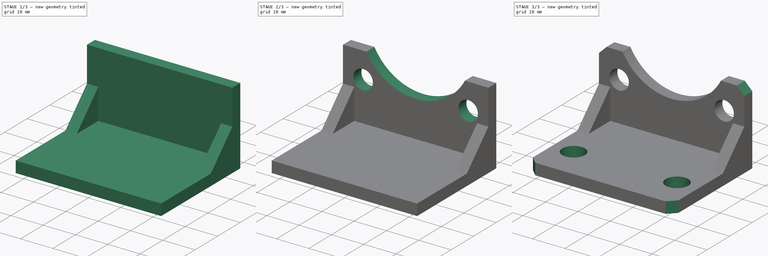
[diagram: build sequence overview — one tinted view per stage of 3, left to right]
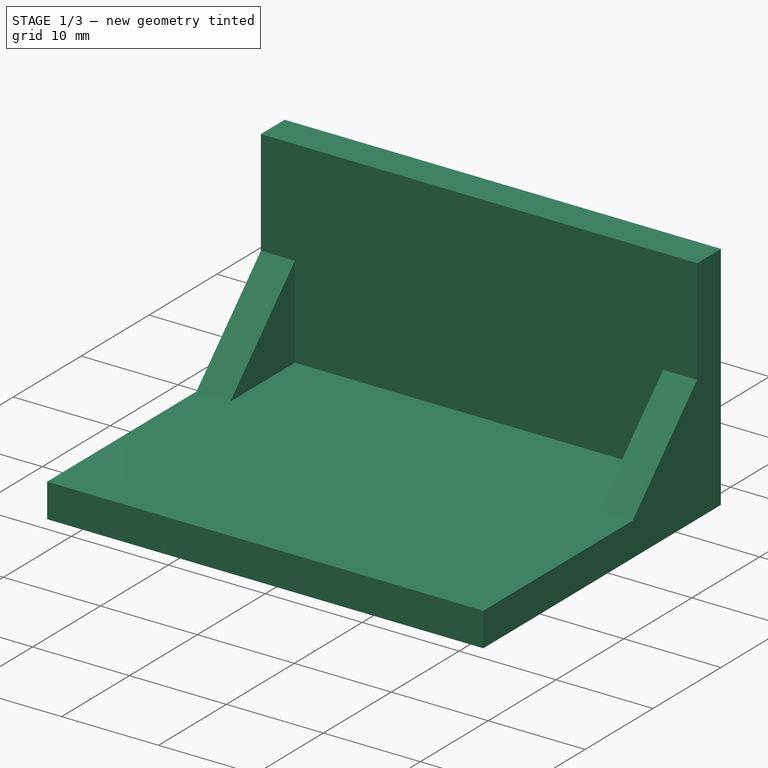
[diagram: stage 1 of 3 — iso view after this stage's code; geometry added in this stage tinted green]
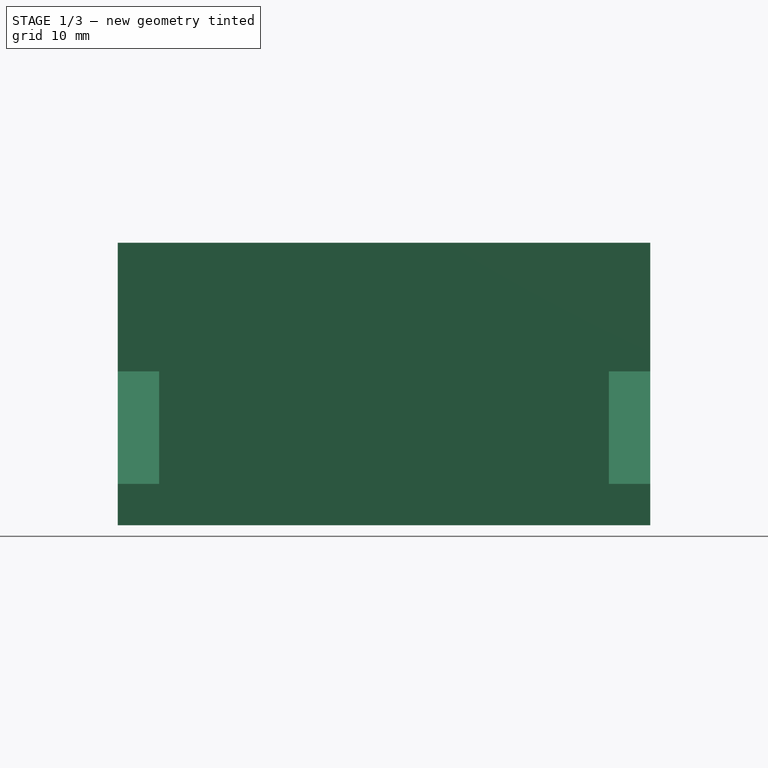
[diagram: stage 1 of 3 — front view after this stage's code; geometry added in this stage tinted green]
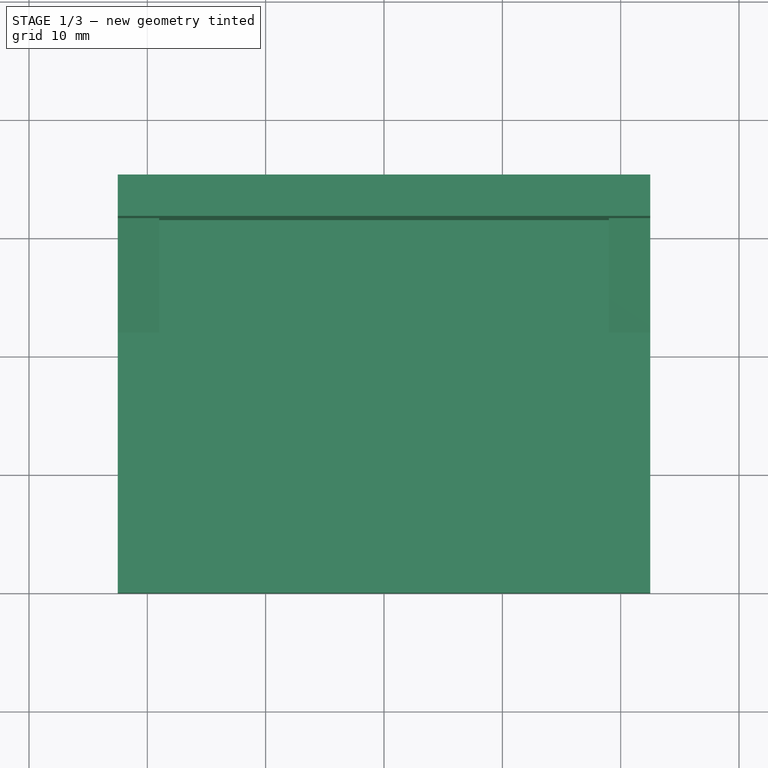
[diagram: stage 1 of 3 — top view after this stage's code; geometry added in this stage tinted green]
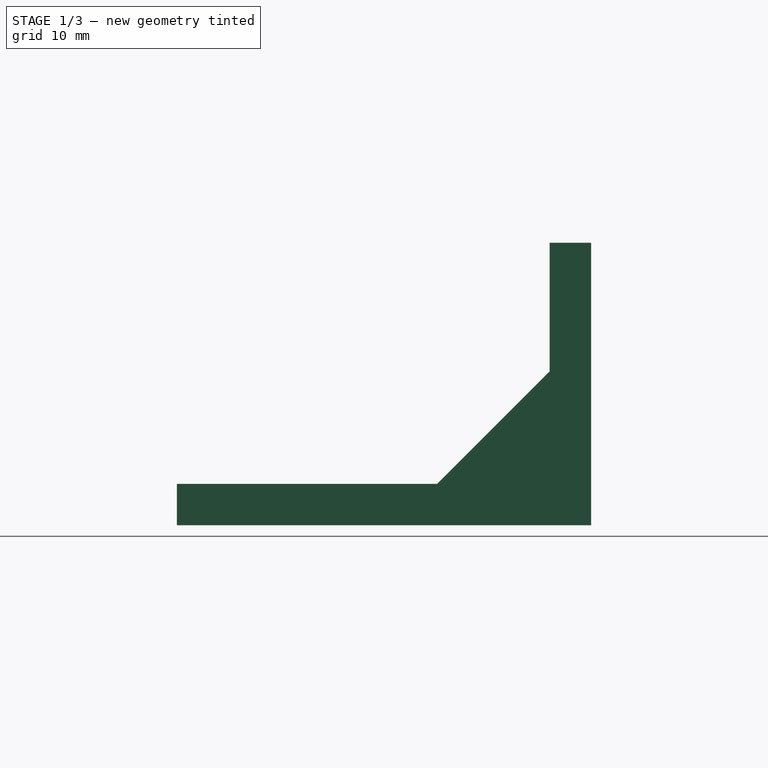
[diagram: stage 1 of 3 — right view after this stage's code; geometry added in this stage tinted green]
FCSTD DOCUMENT  (FreeCAD 0.17R13509 (Git))
Label: Foot
License: CreativeCommons Attribution-ShareAlike
LicenseURL: http://creativecommons.org/licenses/by-sa/4.0/
objects: Sketcher::SketchObject×4, PartDesign::Pocket×3, Spreadsheet::Sheet×1, PartDesign::Pad×1, PartDesign::Chamfer×1, PartDesign::Body×1, App::Part×1
note: 14 computed .brp shape members not serialized (recipe doc carries the construction recipe); baked Part::Feature solids carry a one-line shape summary decoded from their .brp

FEATURE [Spreadsheet::Sheet] Spreadsheet  label="Dimensions"
  cells = A3=Diametro; B3=32; D3=32; E3=40; F3=50; G3=63; H3=80; I3=100; J3=125; K3=160; L3=200; A4=Medida1; B4(pieb1)=3.5; D4=3.5; E4=3.5; F4=3.5; G4=4.5; H4=5; I4=5; J4=8; K4=9; L4=12; A5=Medida2; B5(pieb2)=32.5; D5=32.5; E5=38; F5=46.5; G5=56.5; H5=72; I5=89; J5=110; K5=140; L5=175; A6=Medida3; B6(pieb3)=32; D6=32; E6=36; F6=45; G6=50; H6=63; I6=75; J6=90; K6=115; L6=135; A7=Medida4; B7(pieb4)=45; D7=45; E7=52; F7=65; G7=75; H7=95; I7=115; J7=140; K7=180; L7=220; A8=Medida5; B8(pieb5)=7; D8=7; E8=9; F8=9; G8=9; H8=12; I8=14; J8=16; K8=18; L8=22; A9=Medida6; B9(pieb6)=32; D9=32; E9=36; F9=45; G9=50; H9=63; I9=71; J9=90; K9=115; L9=135; A10=Medida7; B10(pieb7)=24; D10=24; E10=28; F10=32; G10=32; H10=41; I10=41; J10=45; K10=60; L10=70; A11=Medida 8; B11(pieb8)=11; D11=11; E11=12; F11=13; G11=13; H11=14; I11=16; J11=25; K11=15; L11=30; A13=B; B13(bb)=30; D13=30; E13=35; F13=40; G13=45; H13=45; I13=55; J13=60; K13=65; L13=75; A14=RT; B14(rt)=6; D14=6; E14=6; F14=8; G14=8; H14=10; I14=10; J14=12; K14=16; L14=16
FEATURE [Sketcher::SketchObject] Sketch
  MapMode = 5
  Placement = pos=(0,0,0) rot=(0.57735,0.57735,0.57735;2.0944rad)
  Support = -> [YZ_Plane001]
  expr: Constraints[32] = Dimensions.pieb2 / 4
  expr: Constraints[14] = Dimensions.pieb1
  expr: Constraints[16] = Dimensions.pieb7 + Dimensions.pieb8
  expr: Constraints[17] = Dimensions.pieb8 * 2
  expr: Constraints[29] = Dimensions.pieb2 / 2
  expr: Constraints[31] = Dimensions.pieb8
  expr: Constraints[24] = Dimensions.pieb6
  sketch-geometry (11):
    g0: LineSegment StartX=0 StartY=0 StartZ=0 EndX=0 EndY=3.5 EndZ=0
    g1: LineSegment StartX=0 StartY=3.5 StartZ=0 EndX=22 EndY=3.5 EndZ=0
    g2: LineSegment StartX=22 StartY=3.5 StartZ=0 EndX=31.5 EndY=13 EndZ=0
    g3: LineSegment StartX=31.5 StartY=13 StartZ=0 EndX=31.5 EndY=23.875 EndZ=0
    g4: LineSegment StartX=31.5 StartY=23.875 StartZ=0 EndX=35 EndY=23.875 EndZ=0
    g5: LineSegment StartX=35 StartY=23.875 StartZ=0 EndX=35 EndY=0 EndZ=0
    g6: LineSegment StartX=35 StartY=0 StartZ=0 EndX=0 EndY=0 EndZ=0
    g7: LineSegment [constr] StartX=22 StartY=3.5 StartZ=0 EndX=35 EndY=3.5 EndZ=0
    g8: LineSegment [constr] StartX=46 StartY=0 StartZ=0 EndX=46 EndY=32 EndZ=0
    g9: LineSegment [constr] StartX=46 StartY=32 StartZ=0 EndX=29.75 EndY=32 EndZ=0
    g10: LineSegment [constr] StartX=29.75 StartY=32 StartZ=0 EndX=29.75 EndY=15.75 EndZ=0
  constraints (33):
    c: Coincident(g0,g-1)
    c: PointOnObject(g0,g-2)
    c: Coincident(g0,g1)
    c: Horizontal(g1)
    c: Coincident(g1,g2)
    c: Coincident(g2,g3)
    c: Vertical(g3)
    c: Coincident(g3,g4)
    c: Horizontal(g4)
    c: Coincident(g4,g5)
    c: PointOnObject(g5,g-1)
    c: Vertical(g5)
    c: Coincident(g5,g6)
    c: Equal(g4,g0)
    c: DistanceY(g0,g0) = 3.5
    c: Coincident(g-1,g6)
    c: DistanceX(g6,g6) = 35
    c: DistanceX(g1,g1) = 22
    c: Coincident(g1,g7)
    c: PointOnObject(g7,g5)
    c: Horizontal(g7)
    c: Angle(g7,g2) = 0.785398
    c: PointOnObject(g8,g-1)
    c: Vertical(g8)
    c: DistanceY(g8,g8) = 32
    c: Coincident(g8,g9)
    c: Horizontal(g9)
    c: Coincident(g9,g10)
    c: Vertical(g10)
    c: DistanceY(g10,g10) = 16.25
    c: Equal(g10,g9)
    c: DistanceX(g5,g8) = 11
    c: DistanceY(g4,g8) = 8.125
FEATURE [PartDesign::Pad] Pad
  Length = 45
  Length2 = 100
  Midplane = true
  Placement = pos=(0,0,0) rot=(0.57735,0.57735,0.57735;2.0944rad)
  Profile = -> Sketch
  Refine = true
  Type = 0
  expr: Length = Dimensions.pieb4
FEATURE [Sketcher::SketchObject] Sketch001
  ExternalGeometry = -> [Pad]
  MapMode = 5
  Placement = pos=(0,0,0) rot=(0.57735,0.57735,0.57735;2.0944rad)
  Support = -> [YZ_Plane001]
  sketch-geometry (3):
    g0: LineSegment StartX=31.5 StartY=13 StartZ=0 EndX=31.5 EndY=3.5 EndZ=0
    g1: LineSegment StartX=31.5 StartY=3.5 StartZ=0 EndX=22 EndY=3.5 EndZ=0
    g2: LineSegment StartX=22 StartY=3.5 StartZ=0 EndX=31.5 EndY=13 EndZ=0
  constraints (7):
    c: Coincident(g0,g-3)
    c: Vertical(g0)
    c: Coincident(g0,g1)
    c: Coincident(g1,g-4)
    c: Coincident(g1,g2)
    c: Coincident(g2,g0)
    c: Horizontal(g1)
FEATURE [PartDesign::Pocket] Pocket
  BaseFeature = -> Pad
  Length = 38
  Length2 = 100
  Midplane = true
  Placement = pos=(0,0,0) rot=(0.57735,0.57735,0.57735;2.0944rad)
  Profile = -> Sketch001
  Refine = true
  Type = 0
  expr: Length = Dimensions.pieb4 - Dimensions.pieb1 * 2
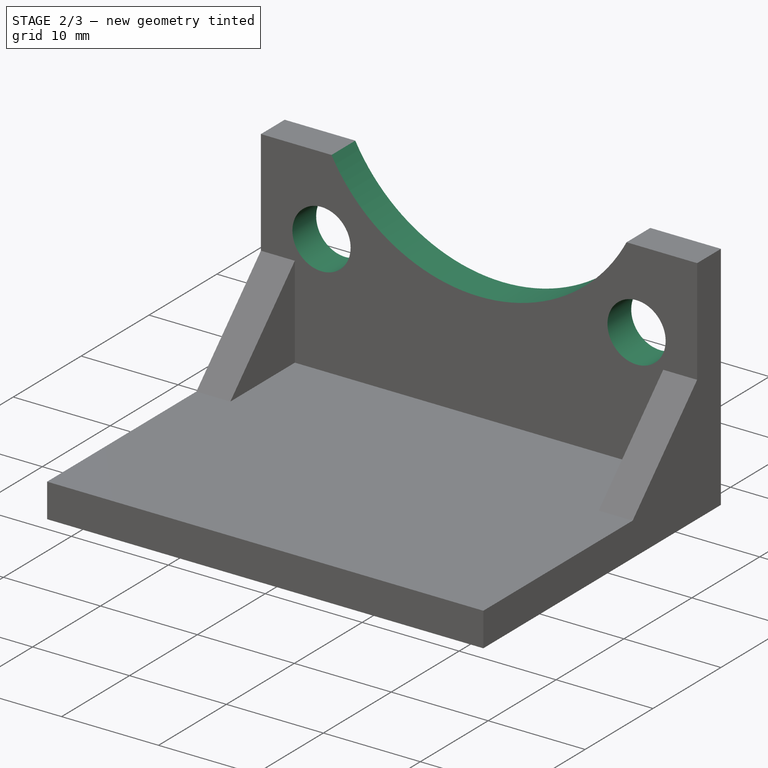
[diagram: stage 2 of 3 — iso view after this stage's code; geometry added in this stage tinted green]
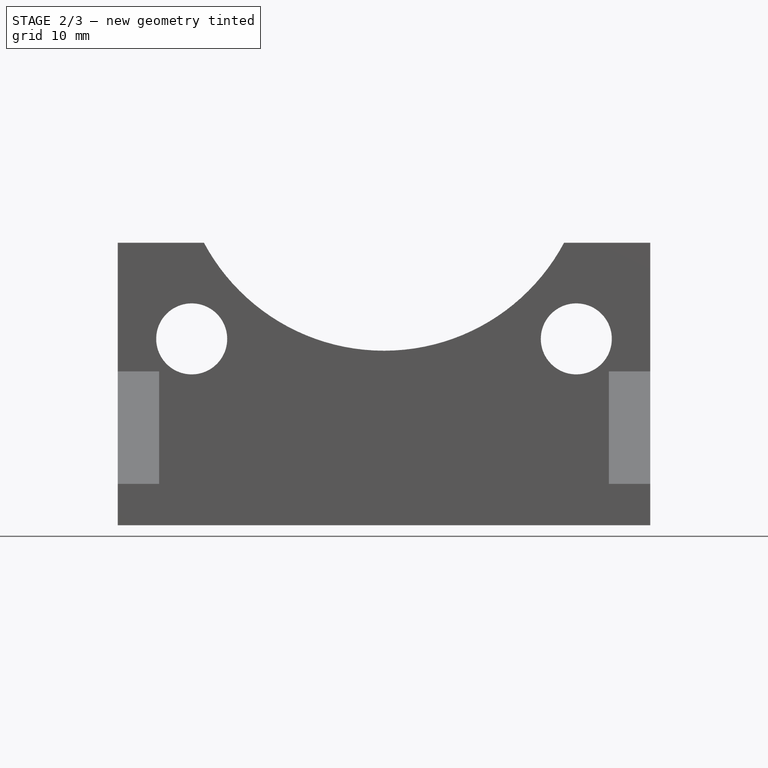
[diagram: stage 2 of 3 — front view after this stage's code; geometry added in this stage tinted green]
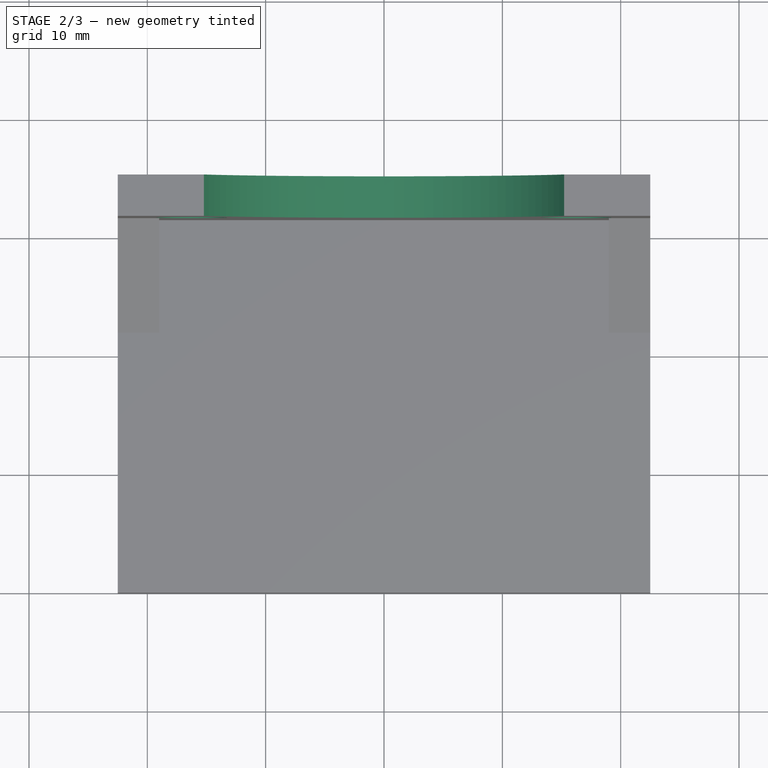
[diagram: stage 2 of 3 — top view after this stage's code; geometry added in this stage tinted green]
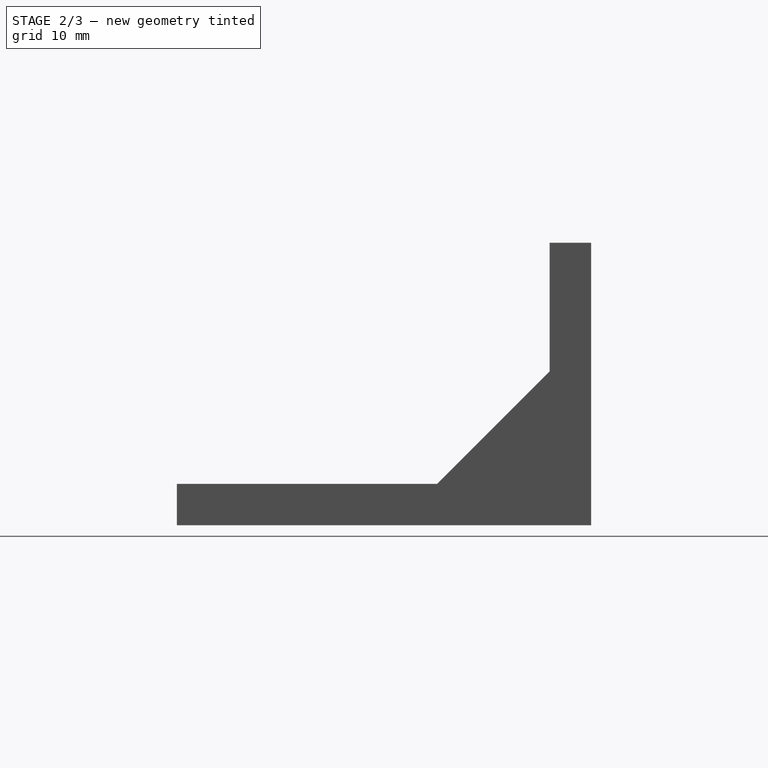
[diagram: stage 2 of 3 — right view after this stage's code; geometry added in this stage tinted green]
FEATURE [Sketcher::SketchObject] Sketch002
  MapMode = 5
  Placement = pos=(0,0,0) rot=(1,0,0;1.5708rad)
  Support = -> [XZ_Plane001]
  expr: Constraints[5] = Dimensions.pieb2 / 2
  expr: Constraints[4] = Dimensions.pieb2
  expr: Constraints[6] = Dimensions.rt / 2
  expr: Constraints[2] = Dimensions.bb / 2 * 1.1499999999999999
  expr: Constraints[1] = Dimensions.pieb6
  sketch-geometry (3):
    g0: Circle CenterX=0 CenterY=32 CenterZ=0 NormalX=0 NormalY=0 NormalZ=1 AngleXU=0 Radius=17.25
    g1: Circle CenterX=-16.25 CenterY=15.75 CenterZ=0 NormalX=0 NormalY=0 NormalZ=1 AngleXU=0 Radius=3
    g2: Circle CenterX=16.25 CenterY=15.75 CenterZ=0 NormalX=0 NormalY=0 NormalZ=1 AngleXU=0 Radius=3
  constraints (8):
    c: PointOnObject(g0,g-2)
    c: DistanceY(g-1,g0) = 32
    c: Radius(g0) = 17.25
    c: Symmetric(g1,g2,g-2)
    c: DistanceX(g1,g2) = 32.5
    c: DistanceY(g2,g0) = 16.25
    c: Radius(g2) = 3
    c: Equal(g2,g1)
FEATURE [PartDesign::Pocket] Pocket001
  BaseFeature = -> Pocket
  Length = 5
  Length2 = 100
  Placement = pos=(0,0,0) rot=(0.57735,0.57735,0.57735;2.0944rad)
  Profile = -> Sketch002
  Refine = true
  Type = 1
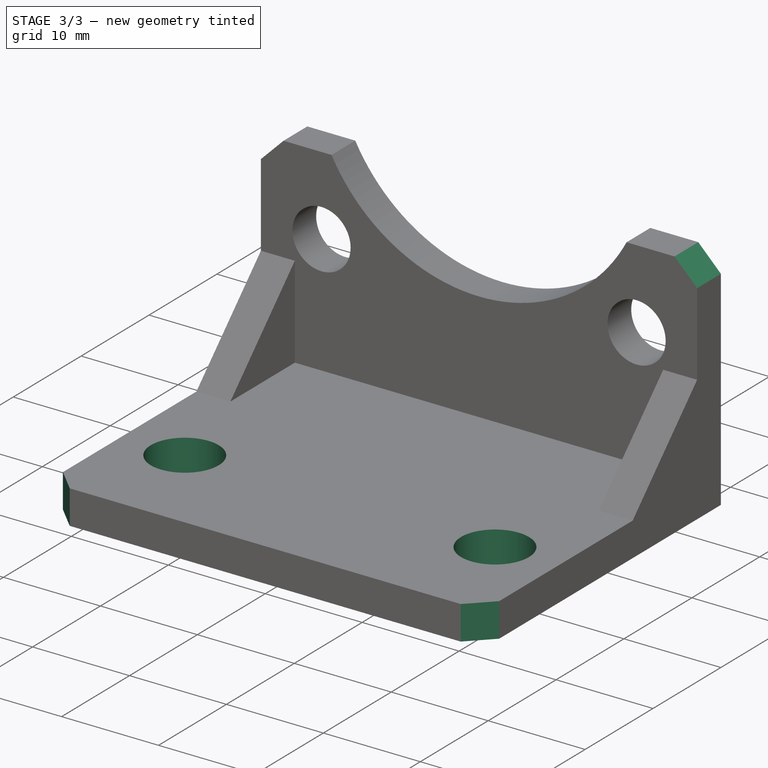
[diagram: stage 3 of 3 — iso view after this stage's code; geometry added in this stage tinted green]
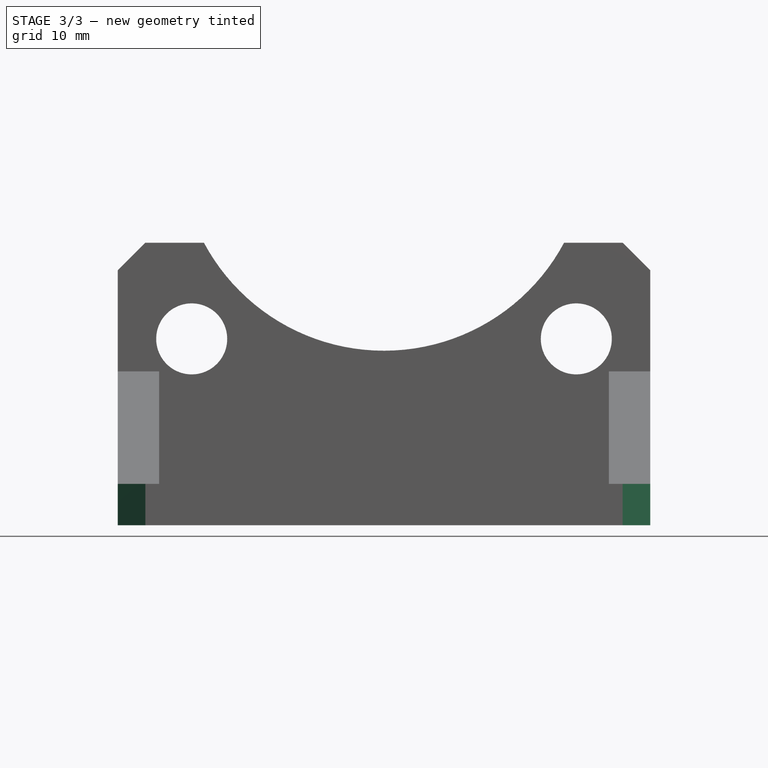
[diagram: stage 3 of 3 — front view after this stage's code; geometry added in this stage tinted green]
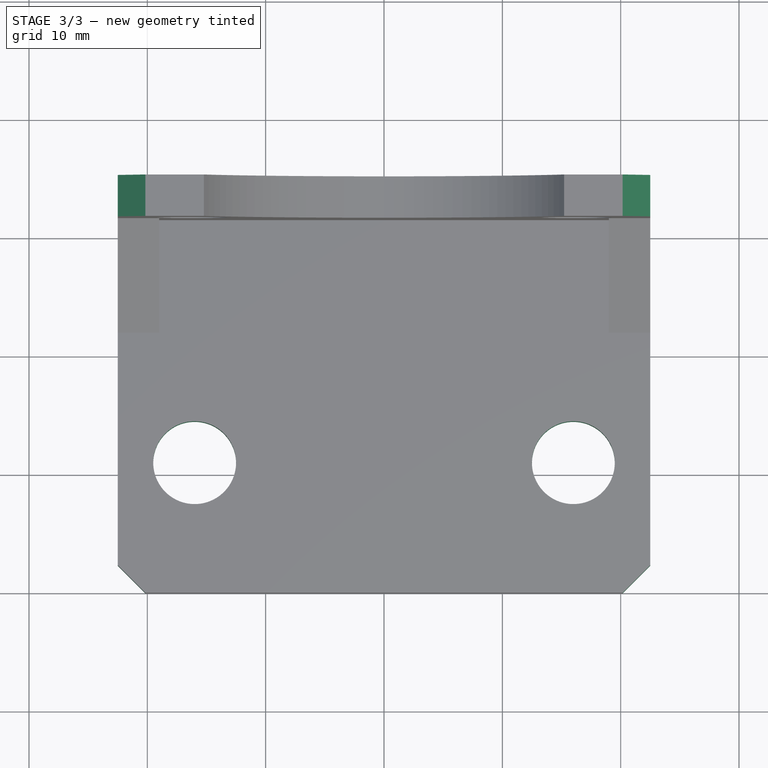
[diagram: stage 3 of 3 — top view after this stage's code; geometry added in this stage tinted green]
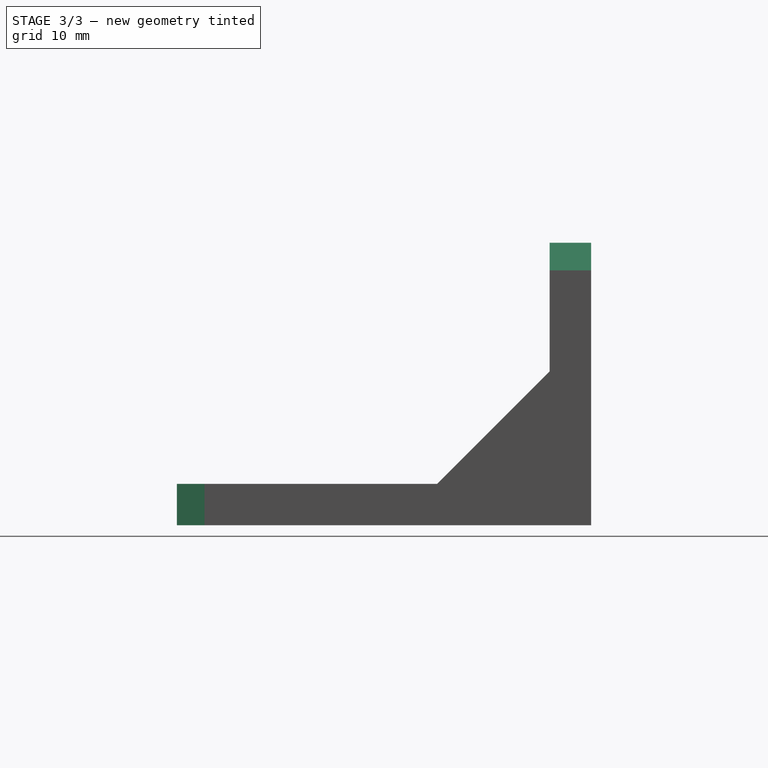
[diagram: stage 3 of 3 — right view after this stage's code; geometry added in this stage tinted green]
FEATURE [Sketcher::SketchObject] Sketch003
  ExternalGeometry = -> [Pocket001]
  MapMode = 5
  Support = -> [XY_Plane001]
  expr: Constraints[4] = Dimensions.pieb7
  expr: Constraints[3] = Dimensions.pieb5 / 2
  expr: Constraints[2] = Dimensions.pieb3
  sketch-geometry (2):
    g0: Circle CenterX=-16 CenterY=11 CenterZ=0 NormalX=0 NormalY=0 NormalZ=1 AngleXU=0 Radius=3.5
    g1: Circle CenterX=16 CenterY=11 CenterZ=0 NormalX=0 NormalY=0 NormalZ=1 AngleXU=0 Radius=3.5
  constraints (5):
    c: Symmetric(g0,g1,g-2)
    c: Equal(g1,g0)
    c: DistanceX(g0,g1) = 32
    c: Radius(g0) = 3.5
    c: DistanceY(g0,g-3) = 24
FEATURE [PartDesign::Pocket] Pocket002
  BaseFeature = -> Pocket001
  Length = 5
  Length2 = 100
  Placement = pos=(0,0,0) rot=(0.57735,0.57735,0.57735;2.0944rad)
  Profile = -> Sketch003
  Refine = true
  Reversed = true
  Type = 1
FEATURE [PartDesign::Chamfer] Chamfer
  Base = -> Pocket002 [Edge21,Edge25,Edge4,Edge3]
  BaseFeature = -> Pocket002
  Placement = pos=(0,0,0) rot=(0.57735,0.57735,0.57735;2.0944rad)
  Size = 2.33333
  expr: Size = Dimensions.pieb5 / 3
FEATURE [PartDesign::Body] Body
  Group = -> [Sketch,Pad,Sketch001,Pocket,Sketch002,Pocket001,Sketch003,Pocket002,Chamfer]
  Origin = -> Origin001
  Tip = -> Chamfer
FEATURE [App::Part] Part
  Group = -> [Body]
  License = CC BY 3.0
  LicenseURL = http://creativecommons.org/licenses/by/3.0/
  Origin = -> Origin
  Type = Foot
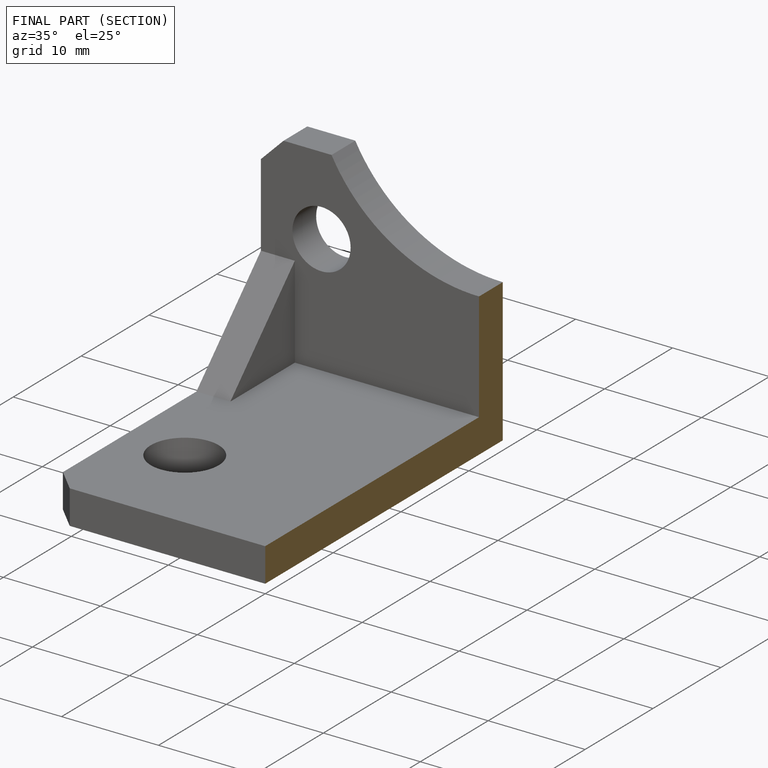
[diagram: finished part — half-section view (interior)]
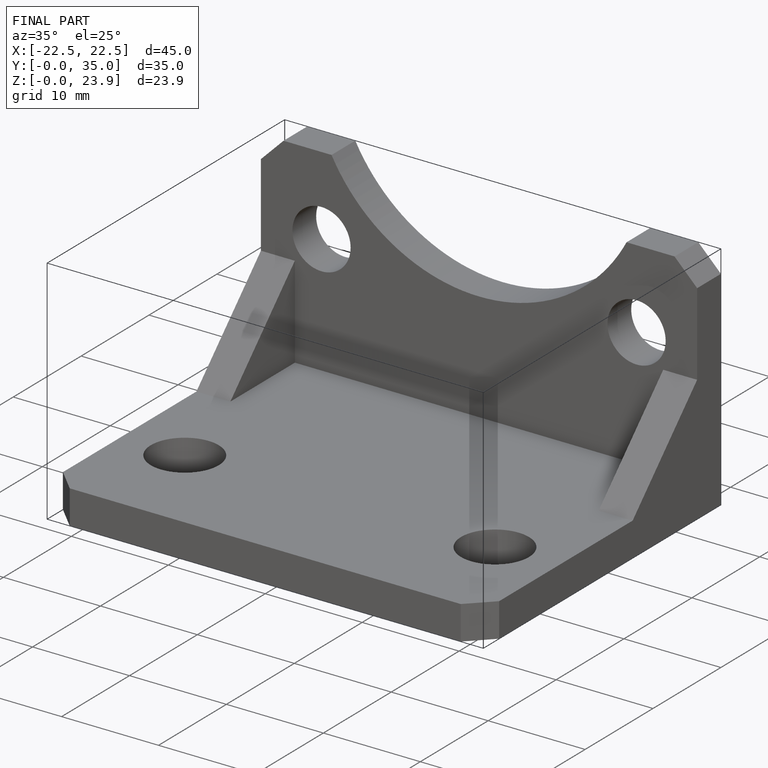
[diagram: finished part — iso view with bounding-box wireframe]
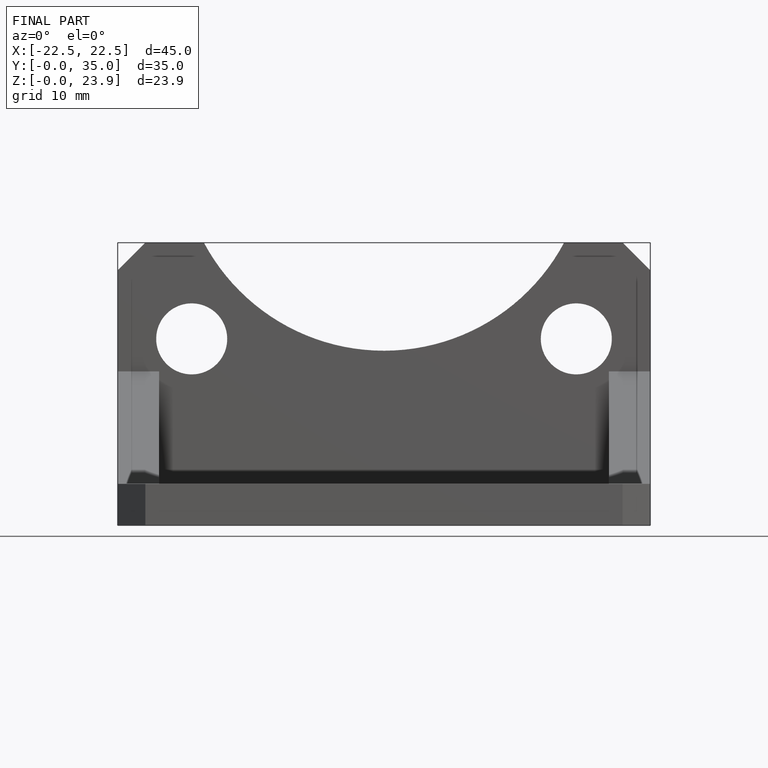
[diagram: finished part — front view with bounding-box wireframe]
